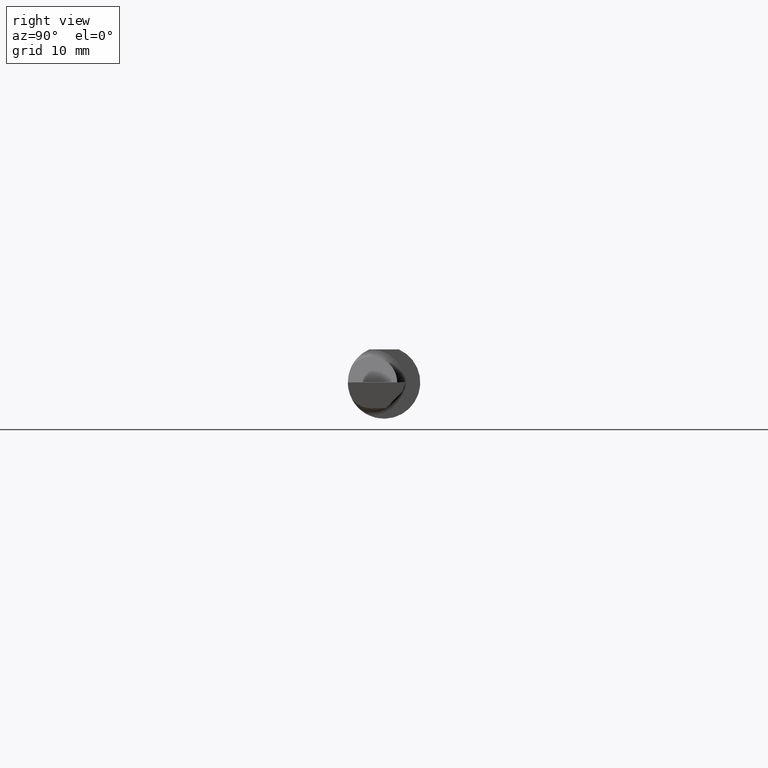
[diagram: clean part render]
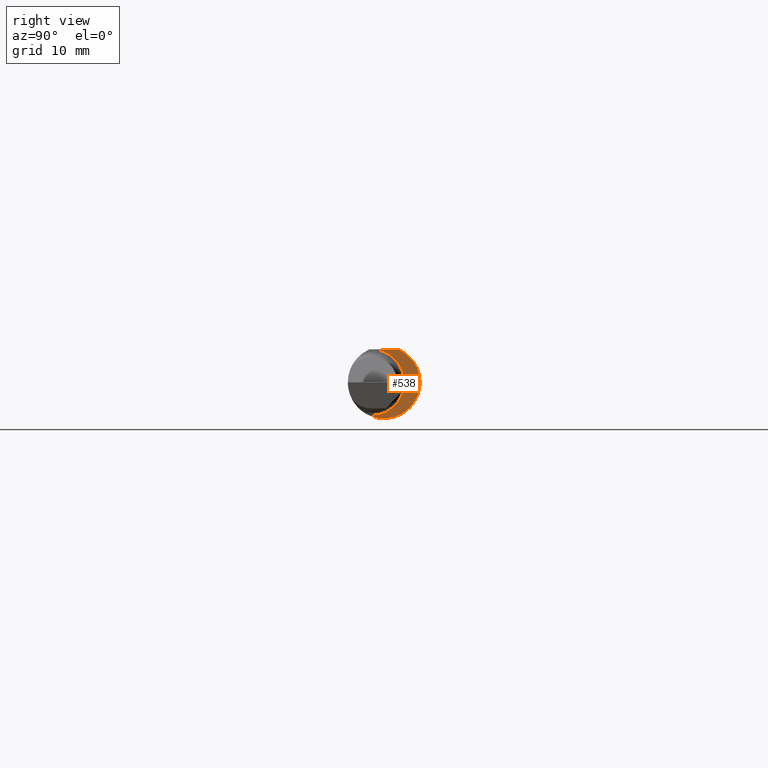
[diagram: same view with one face highlighted and labeled with its STEP entity id]
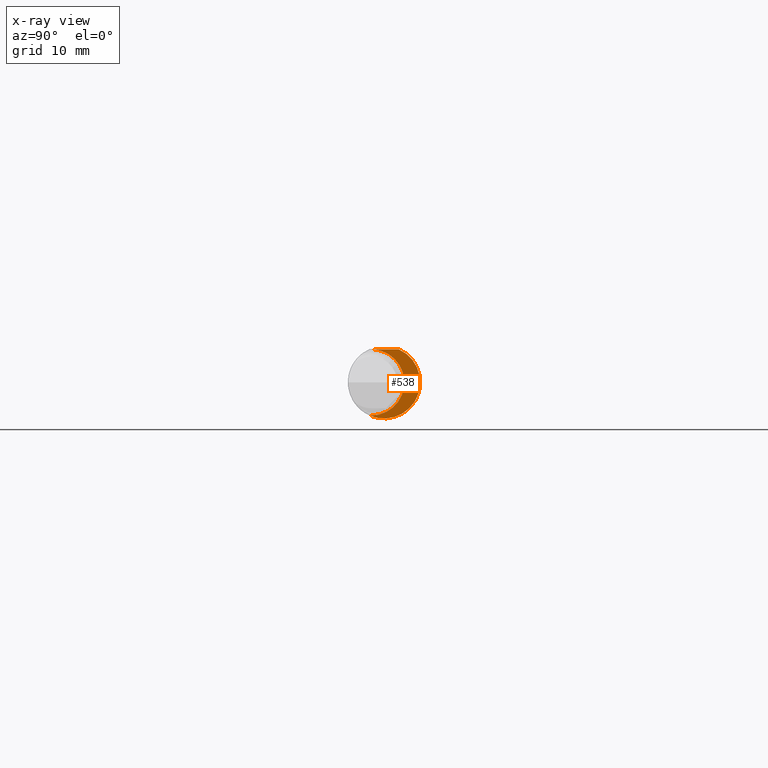
[diagram: x-ray of the same camera — body ghosted, the highlighted face saturated]
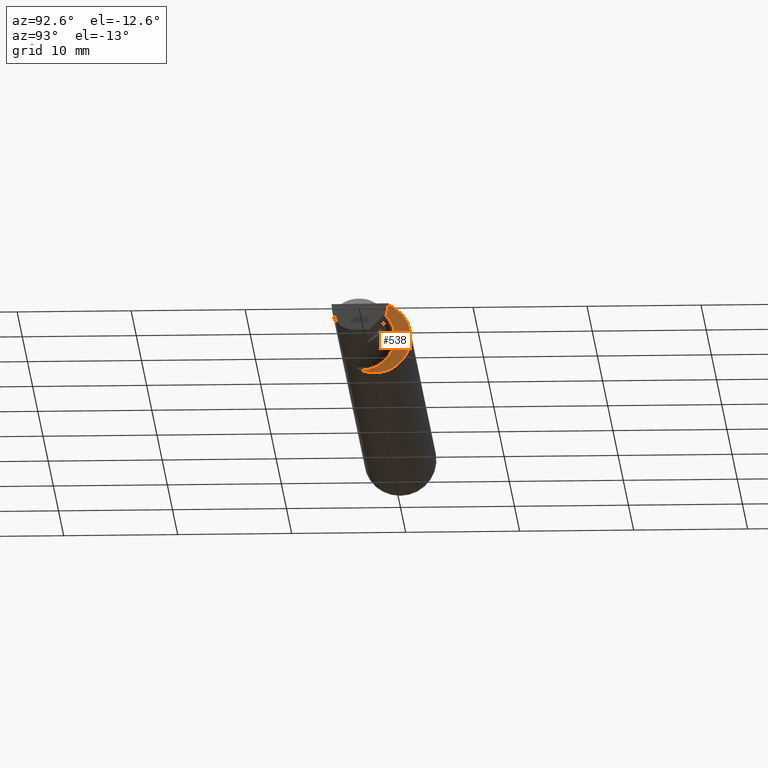
[diagram: same view with one face highlighted and labeled with its STEP entity id]
A machine part, right view. The second image highlights one B-rep face of the part: STEP entity #538.
The next image is the same camera in x-ray: the body ghosted, the highlighted face saturated — about 0% of this face is hidden behind the body in this view.
A second angle (auxiliary view) of the same face is appended — the face is thin or edge-on in the first view.
In plain terms, the highlighted planar face has unit normal (1, 0, 0).
Its self-contained STEP definition (entity closure, byte-faithful):
#11 = ORIENTED_EDGE ( 'NONE', *, *, #211, .T. ) ;
#21 = CIRCLE ( 'NONE', #371, 0.1141499999999999598 ) ;
#26 = AXIS2_PLACEMENT_3D ( 'NONE', #186, #459, #55 ) ;
#30 = DIRECTION ( 'NONE',  ( 0.0000000000000000000, 0.0000000000000000000, -1.000000000000000000 ) ) ;
#55 = DIRECTION ( 'NONE',  ( 0.0000000000000000000, 0.0000000000000000000, -1.000000000000000000 ) ) ;
#99 = AXIS2_PLACEMENT_3D ( 'NONE', #292, #610, #179 ) ;
#129 = LINE ( 'NONE', #245, #246 ) ;
#152 = VERTEX_POINT ( 'NONE', #157 ) ;
#157 = CARTESIAN_POINT ( 'NONE',  ( 1.959999999999999964, -0.05106022727272737510, -0.1139314517192571846 ) ) ;
#158 = ORIENTED_EDGE ( 'NONE', *, *, #188, .T. ) ;
#179 = DIRECTION ( 'NONE',  ( 0.0000000000000000000, 0.0000000000000000000, 1.000000000000000000 ) ) ;
#186 = CARTESIAN_POINT ( 'NONE',  ( 1.959999999999999964, 0.07014999999999996239, 0.0000000000000000000 ) ) ;
#188 = EDGE_CURVE ( 'NONE', #152, #234, #461, .T. ) ;
#211 = EDGE_CURVE ( 'NONE', #323, #312, #620, .T. ) ;
#234 = VERTEX_POINT ( 'NONE', #404 ) ;
#245 = CARTESIAN_POINT ( 'NONE',  ( 1.959999999999999964, 0.1748500000000000609, 0.1138500000000000068 ) ) ;
#246 = VECTOR ( 'NONE', #682, 39.37007874015748143 ) ;
#266 = DIRECTION ( 'NONE',  ( -1.000000000000000000, -0.0000000000000000000, -0.0000000000000000000 ) ) ;
#274 = DIRECTION ( 'NONE',  ( 1.000000000000000000, 0.0000000000000000000, 0.0000000000000000000 ) ) ;
#292 = CARTESIAN_POINT ( 'NONE',  ( 1.959999999999999964, -0.04399999999999999745, 0.0000000000000000000 ) ) ;
#312 = VERTEX_POINT ( 'NONE', #410 ) ;
#323 = VERTEX_POINT ( 'NONE', #623 ) ;
#328 = CARTESIAN_POINT ( 'NONE',  ( 1.959999999999999964, 0.0000000000000000000, 0.0000000000000000000 ) ) ;
#342 = FACE_OUTER_BOUND ( 'NONE', #485, .T. ) ;
#371 = AXIS2_PLACEMENT_3D ( 'NONE', #594, #266, #648 ) ;
#383 = EDGE_CURVE ( 'NONE', #234, #323, #129, .T. ) ;
#404 = CARTESIAN_POINT ( 'NONE',  ( 1.959999999999999964, 0.05124158467494921432, 0.1138500000000000206 ) ) ;
#410 = CARTESIAN_POINT ( 'NONE',  ( 1.959999999999999964, -0.04399999999999997663, -0.1141499999999999598 ) ) ;
#414 = ORIENTED_EDGE ( 'NONE', *, *, #677, .T. ) ;
#459 = DIRECTION ( 'NONE',  ( 1.000000000000000000, 0.0000000000000000000, 0.0000000000000000000 ) ) ;
#461 = CIRCLE ( 'NONE', #683, 0.1248500000000000026 ) ;
#485 = EDGE_LOOP ( 'NONE', ( #158, #489, #11, #414 ) ) ;
#489 = ORIENTED_EDGE ( 'NONE', *, *, #383, .T. ) ;
#538 = ADVANCED_FACE ( 'NONE', ( #342 ), #568, .T. ) ;
#568 = PLANE ( 'NONE',  #26 ) ;
#594 = CARTESIAN_POINT ( 'NONE',  ( 1.959999999999999964, -0.04399999999999999745, 0.0000000000000000000 ) ) ;
#610 = DIRECTION ( 'NONE',  ( -1.000000000000000000, -0.0000000000000000000, -0.0000000000000000000 ) ) ;
#620 = CIRCLE ( 'NONE', #99, 0.1141499999999999598 ) ;
#623 = CARTESIAN_POINT ( 'NONE',  ( 1.959999999999999964, -0.03572957074874694855, 0.1138500000000000345 ) ) ;
#648 = DIRECTION ( 'NONE',  ( 0.0000000000000000000, 0.0000000000000000000, 1.000000000000000000 ) ) ;
#677 = EDGE_CURVE ( 'NONE', #312, #152, #21, .T. ) ;
#682 = DIRECTION ( 'NONE',  ( 0.0000000000000000000, -1.000000000000000000, 1.464745492742491612E-16 ) ) ;
#683 = AXIS2_PLACEMENT_3D ( 'NONE', #328, #274, #30 ) ;